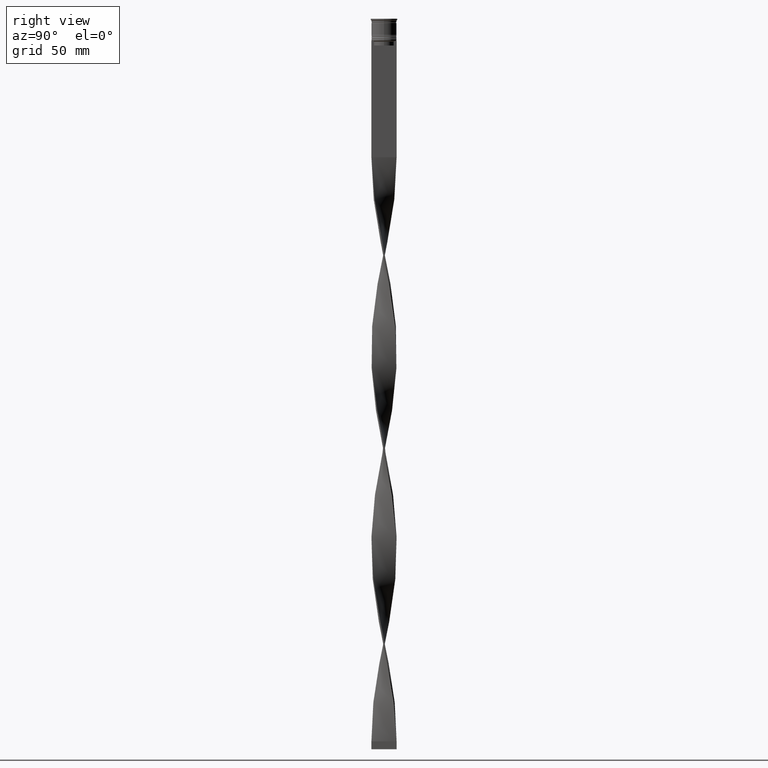
[diagram: clean part render]
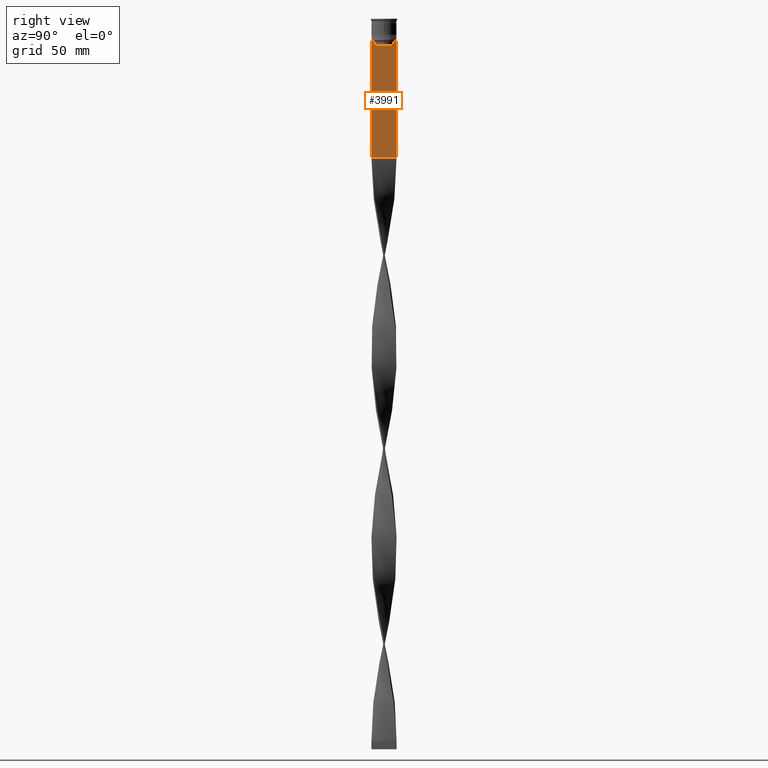
[diagram: same view with one face highlighted and labeled with its STEP entity id]
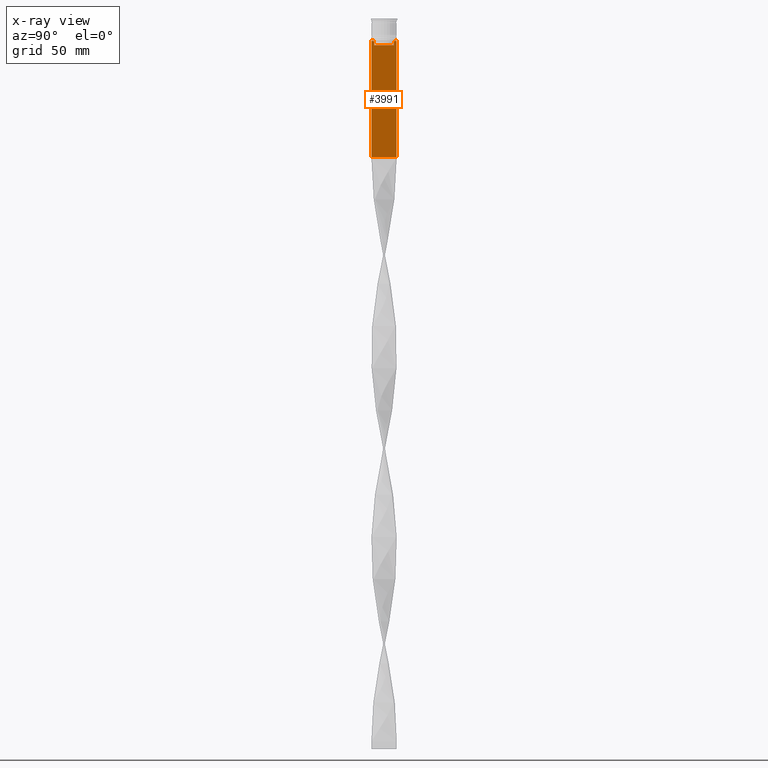
[diagram: x-ray of the same camera — body ghosted, the highlighted face saturated]
A machine part, right view. The second image highlights one B-rep face of the part: STEP entity #3991.
The next image is the same camera in x-ray: the body ghosted, the highlighted face saturated — about 0% of this face is hidden behind the body in this view.
In plain terms, the highlighted planar face has unit normal (-1, 0, 0).
Its self-contained STEP definition (entity closure, byte-faithful):
#77 = VERTEX_POINT ( 'NONE', #1745 ) ;
#78 = CARTESIAN_POINT ( 'NONE',  ( 0.5000000000000001110, 6.547597841304911626, -14.33335192459222718 ) ) ;
#106 = EDGE_CURVE ( 'NONE', #3152, #3312, #3155, .T. ) ;
#138 = CARTESIAN_POINT ( 'NONE',  ( 0.5000000000000001110, 6.881860213634098500, -14.00000000000000178 ) ) ;
#144 = CARTESIAN_POINT ( 'NONE',  ( 0.5000000000000001110, 6.380438856379708312, 0.000000000000000000 ) ) ;
#152 = EDGE_CURVE ( 'NONE', #2358, #2468, #4094, .T. ) ;
#165 = PLANE ( 'NONE',  #239 ) ;
#174 = VECTOR ( 'NONE', #851, 1000.000000000000000 ) ;
#239 = AXIS2_PLACEMENT_3D ( 'NONE', #2837, #550, #3167 ) ;
#247 = CARTESIAN_POINT ( 'NONE',  ( 0.5000000000000001110, -6.380438856379708312, -14.50000000000000000 ) ) ;
#257 = EDGE_CURVE ( 'NONE', #3973, #806, #1055, .T. ) ;
#335 = ORIENTED_EDGE ( 'NONE', *, *, #3507, .T. ) ;
#336 = LINE ( 'NONE', #1336, #3302 ) ;
#338 = CARTESIAN_POINT ( 'NONE',  ( 0.5000000000000001110, -8.000000000000003553, -14.00000000000000178 ) ) ;
#432 = CARTESIAN_POINT ( 'NONE',  ( 0.5000000000000001110, -8.000000000000003553, -14.00000000000000178 ) ) ;
#465 = DIRECTION ( 'NONE',  ( 0.000000000000000000, 0.000000000000000000, -1.000000000000000000 ) ) ;
#488 = EDGE_CURVE ( 'NONE', #77, #918, #1351, .T. ) ;
#550 = DIRECTION ( 'NONE',  ( -1.000000000000000000, 0.000000000000000000, 0.000000000000000000 ) ) ;
#639 = ORIENTED_EDGE ( 'NONE', *, *, #3175, .T. ) ;
#648 = CARTESIAN_POINT ( 'NONE',  ( 0.5000000000000001110, -6.881860213634098500, -14.00000000000000178 ) ) ;
#658 = ORIENTED_EDGE ( 'NONE', *, *, #257, .T. ) ;
#659 = VECTOR ( 'NONE', #2798, 1000.000000000000000 ) ;
#721 = CARTESIAN_POINT ( 'NONE',  ( 0.5000000000000001110, -8.000000000000003553, -14.00000000000000178 ) ) ;
#744 = LINE ( 'NONE', #144, #3445 ) ;
#806 = VERTEX_POINT ( 'NONE', #924 ) ;
#815 = ORIENTED_EDGE ( 'NONE', *, *, #1091, .T. ) ;
#851 = DIRECTION ( 'NONE',  ( 0.000000000000000000, -1.000000000000000000, 0.000000000000000000 ) ) ;
#918 = VERTEX_POINT ( 'NONE', #3883 ) ;
#924 = CARTESIAN_POINT ( 'NONE',  ( 0.5000000000000001110, 6.380438856379708312, -14.50000000000000000 ) ) ;
#1025 = ORIENTED_EDGE ( 'NONE', *, *, #106, .T. ) ;
#1055 = B_SPLINE_CURVE_WITH_KNOTS ( 'NONE', 3,
 ( #2500, #4235, #78, #4112 ),
 .UNSPECIFIED., .F., .F.,
 ( 4, 4 ),
 ( 0.01172465562756038263, 0.01243276816391822651 ),
 .UNSPECIFIED. ) ;
#1063 = EDGE_CURVE ( 'NONE', #3312, #2755, #2316, .T. ) ;
#1091 = EDGE_CURVE ( 'NONE', #2755, #2358, #336, .T. ) ;
#1162 = CARTESIAN_POINT ( 'NONE',  ( 0.5000000000000001110, 7.999999999999996447, 2.031219541881394530 ) ) ;
#1318 = VERTEX_POINT ( 'NONE', #3497 ) ;
#1336 = CARTESIAN_POINT ( 'NONE',  ( 0.5000000000000001110, -8.000000000000003553, -14.00000000000000178 ) ) ;
#1350 = VECTOR ( 'NONE', #465, 1000.000000000000000 ) ;
#1351 = LINE ( 'NONE', #721, #3247 ) ;
#1457 = DIRECTION ( 'NONE',  ( -0.000000000000000000, -0.000000000000000000, 1.000000000000000000 ) ) ;
#1518 = ORIENTED_EDGE ( 'NONE', *, *, #152, .T. ) ;
#1526 = ORIENTED_EDGE ( 'NONE', *, *, #3299, .T. ) ;
#1581 = DIRECTION ( 'NONE',  ( 0.000000000000000000, -1.000000000000000000, 0.000000000000000000 ) ) ;
#1644 = CARTESIAN_POINT ( 'NONE',  ( 0.5000000000000001110, -8.000000000000003553, 2.031219541881394530 ) ) ;
#1745 = CARTESIAN_POINT ( 'NONE',  ( 0.5000000000000001110, 7.999999999999996447, -14.00000000000000178 ) ) ;
#1767 = CARTESIAN_POINT ( 'NONE',  ( 0.5000000000000001110, -6.881860213634098500, -14.00000000000000178 ) ) ;
#1810 = LINE ( 'NONE', #1162, #1350 ) ;
#1853 = VERTEX_POINT ( 'NONE', #4237 ) ;
#1904 = ORIENTED_EDGE ( 'NONE', *, *, #488, .T. ) ;
#1998 = ORIENTED_EDGE ( 'NONE', *, *, #1063, .T. ) ;
#2029 = VERTEX_POINT ( 'NONE', #3879 ) ;
#2114 = VECTOR ( 'NONE', #4284, 1000.000000000000000 ) ;
#2166 = CARTESIAN_POINT ( 'NONE',  ( 0.5000000000000001110, -6.380438856379708312, 0.000000000000000000 ) ) ;
#2196 = VECTOR ( 'NONE', #3635, 1000.000000000000000 ) ;
#2221 = CARTESIAN_POINT ( 'NONE',  ( 0.5000000000000001110, -6.380438856379708312, -14.50000000000000000 ) ) ;
#2227 = EDGE_LOOP ( 'NONE', ( #335, #658, #639, #1526, #1025, #1998, #815, #1518, #3210, #3710, #3693, #1904 ) ) ;
#2241 = LINE ( 'NONE', #1644, #2196 ) ;
#2316 = B_SPLINE_CURVE_WITH_KNOTS ( 'NONE', 3,
 ( #247, #4318, #3331, #648 ),
 .UNSPECIFIED., .F., .F.,
 ( 4, 4 ),
 ( 0.02996184199614751464, 0.03067452609193705923 ),
 .UNSPECIFIED. ) ;
#2338 = LINE ( 'NONE', #2954, #2114 ) ;
#2358 = VERTEX_POINT ( 'NONE', #2595 ) ;
#2410 = VECTOR ( 'NONE', #3846, 1000.000000000000000 ) ;
#2417 = EDGE_CURVE ( 'NONE', #2029, #1853, #2338, .T. ) ;
#2423 = DIRECTION ( 'NONE',  ( 0.000000000000000000, 0.000000000000000000, -1.000000000000000000 ) ) ;
#2468 = VERTEX_POINT ( 'NONE', #338 ) ;
#2493 = EDGE_CURVE ( 'NONE', #2468, #2029, #2241, .T. ) ;
#2494 = LINE ( 'NONE', #3234, #2410 ) ;
#2500 = CARTESIAN_POINT ( 'NONE',  ( 0.5000000000000001110, 6.881860213634098500, -14.00000000000000178 ) ) ;
#2515 = CARTESIAN_POINT ( 'NONE',  ( 0.5000000000000001110, -8.000000000000003553, -14.00000000000000178 ) ) ;
#2595 = CARTESIAN_POINT ( 'NONE',  ( 0.5000000000000001110, -7.884161337770806632, -14.00000000000000178 ) ) ;
#2634 = EDGE_CURVE ( 'NONE', #77, #1853, #1810, .T. ) ;
#2755 = VERTEX_POINT ( 'NONE', #1767 ) ;
#2798 = DIRECTION ( 'NONE',  ( 0.000000000000000000, -1.000000000000000000, 0.000000000000000000 ) ) ;
#2837 = CARTESIAN_POINT ( 'NONE',  ( 0.5000000000000001110, -8.000000000000003553, 2.031219541881394530 ) ) ;
#2954 = CARTESIAN_POINT ( 'NONE',  ( 0.5000000000000001110, -8.000000000000003553, -88.00000000000000000 ) ) ;
#3152 = VERTEX_POINT ( 'NONE', #3736 ) ;
#3155 = LINE ( 'NONE', #2166, #3651 ) ;
#3167 = DIRECTION ( 'NONE',  ( 0.000000000000000000, 0.000000000000000000, 1.000000000000000000 ) ) ;
#3175 = EDGE_CURVE ( 'NONE', #806, #1318, #744, .T. ) ;
#3210 = ORIENTED_EDGE ( 'NONE', *, *, #2493, .T. ) ;
#3234 = CARTESIAN_POINT ( 'NONE',  ( 0.5000000000000001110, 6.399999999999999467, -17.00000000000000000 ) ) ;
#3247 = VECTOR ( 'NONE', #3672, 1000.000000000000000 ) ;
#3299 = EDGE_CURVE ( 'NONE', #1318, #3152, #2494, .T. ) ;
#3302 = VECTOR ( 'NONE', #1581, 1000.000000000000000 ) ;
#3312 = VERTEX_POINT ( 'NONE', #2221 ) ;
#3331 = CARTESIAN_POINT ( 'NONE',  ( 0.5000000000000001110, -6.714736947305993908, -14.16668390685738821 ) ) ;
#3445 = VECTOR ( 'NONE', #2423, 1000.000000000000000 ) ;
#3497 = CARTESIAN_POINT ( 'NONE',  ( 0.5000000000000001110, 6.380438856379708312, -17.00000000000000000 ) ) ;
#3507 = EDGE_CURVE ( 'NONE', #918, #3973, #3511, .T. ) ;
#3511 = LINE ( 'NONE', #2515, #174 ) ;
#3635 = DIRECTION ( 'NONE',  ( 0.000000000000000000, 0.000000000000000000, -1.000000000000000000 ) ) ;
#3651 = VECTOR ( 'NONE', #1457, 1000.000000000000000 ) ;
#3672 = DIRECTION ( 'NONE',  ( 0.000000000000000000, -1.000000000000000000, 0.000000000000000000 ) ) ;
#3693 = ORIENTED_EDGE ( 'NONE', *, *, #2634, .F. ) ;
#3710 = ORIENTED_EDGE ( 'NONE', *, *, #2417, .T. ) ;
#3736 = CARTESIAN_POINT ( 'NONE',  ( 0.5000000000000001110, -6.380438856379708312, -17.00000000000000000 ) ) ;
#3846 = DIRECTION ( 'NONE',  ( 0.000000000000000000, -1.000000000000000000, 0.000000000000000000 ) ) ;
#3879 = CARTESIAN_POINT ( 'NONE',  ( 0.5000000000000001110, -8.000000000000003553, -88.00000000000000000 ) ) ;
#3883 = CARTESIAN_POINT ( 'NONE',  ( 0.5000000000000001110, 7.884161337770806632, -14.00000000000000178 ) ) ;
#3973 = VERTEX_POINT ( 'NONE', #138 ) ;
#3991 = ADVANCED_FACE ( 'NONE', ( #4148 ), #165, .F. ) ;
#4094 = LINE ( 'NONE', #432, #659 ) ;
#4112 = CARTESIAN_POINT ( 'NONE',  ( 0.5000000000000001110, 6.380438856379708312, -14.50000000000000000 ) ) ;
#4148 = FACE_OUTER_BOUND ( 'NONE', #2227, .T. ) ;
#4235 = CARTESIAN_POINT ( 'NONE',  ( 0.5000000000000001110, 6.714736947114692711, -14.16668390704818847 ) ) ;
#4237 = CARTESIAN_POINT ( 'NONE',  ( 0.5000000000000001110, 7.999999999999996447, -88.00000000000000000 ) ) ;
#4284 = DIRECTION ( 'NONE',  ( 0.000000000000000000, 1.000000000000000000, 0.000000000000000000 ) ) ;
#4318 = CARTESIAN_POINT ( 'NONE',  ( 0.5000000000000001110, -6.547597841511247019, -14.33335192438652150 ) ) ;